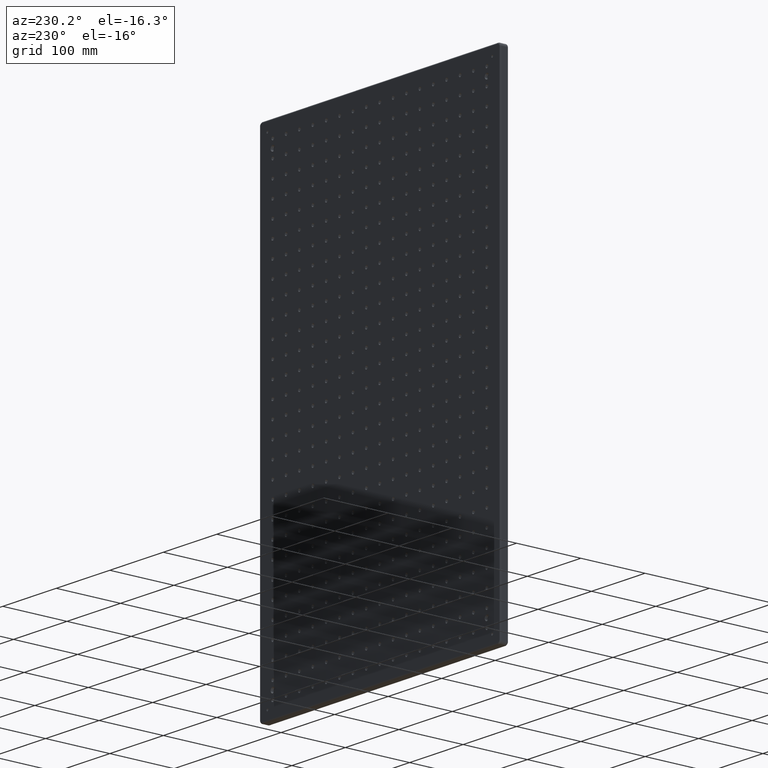
[diagram: clean part render]
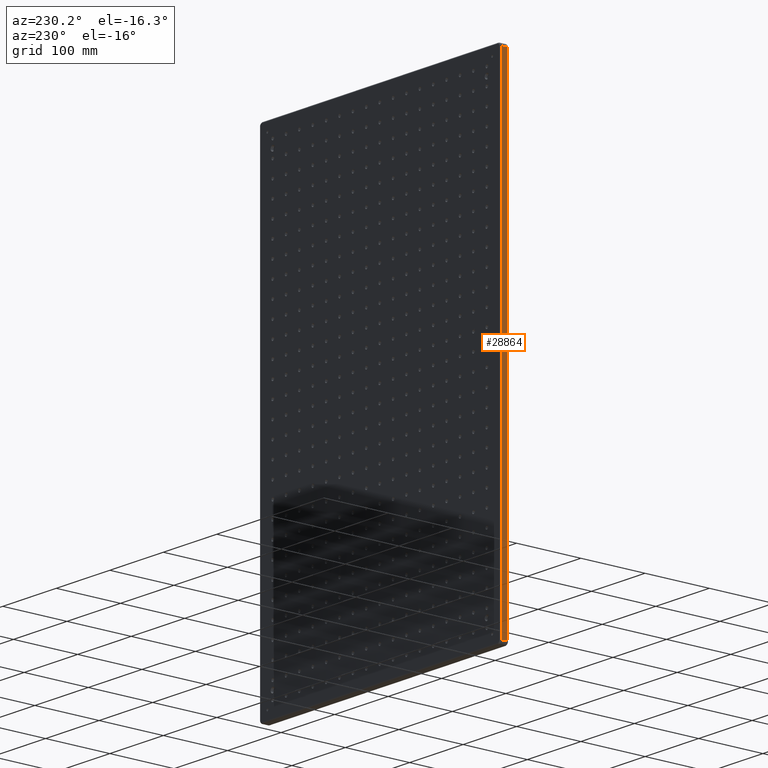
[diagram: same view with one face highlighted and labeled with its STEP entity id]
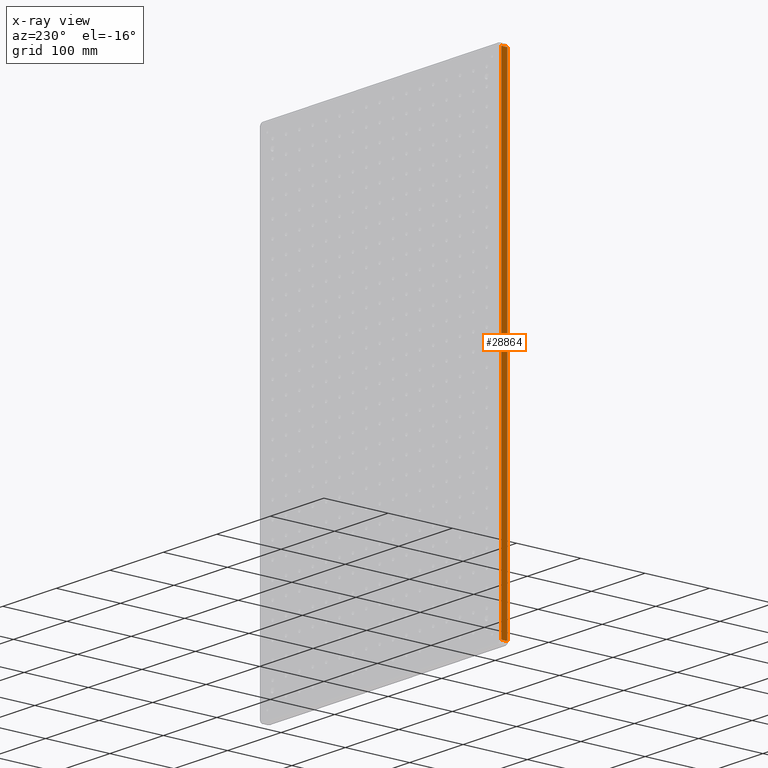
[diagram: x-ray of the same camera — body ghosted, the highlighted face saturated]
A machine part, auxiliary view. The second image highlights one B-rep face of the part: STEP entity #28864.
The next image is the same camera in x-ray: the body ghosted, the highlighted face saturated — about 0% of this face is hidden behind the body in this view.
In plain terms, the highlighted planar face has unit normal (1, 0, 0).
Its self-contained STEP definition (entity closure, byte-faithful):
#376 = VECTOR ( 'NONE', #14004, 1000.000000000000000 ) ;
#951 = VECTOR ( 'NONE', #1345, 1000.000000000000000 ) ;
#1018 = VECTOR ( 'NONE', #28519, 1000.000000000000000 ) ;
#1345 = DIRECTION ( 'NONE',  ( 0.000000000000000000, -0.000000000000000000, -1.000000000000000000 ) ) ;
#2539 = ORIENTED_EDGE ( 'NONE', *, *, #3381, .F. ) ;
#3063 = VERTEX_POINT ( 'NONE', #4716 ) ;
#3381 = EDGE_CURVE ( 'NONE', #3063, #36316, #13490, .T. ) ;
#4716 = CARTESIAN_POINT ( 'NONE',  ( -224.9999999999999147, 11.00000000000000000, 370.0000000000000000 ) ) ;
#5462 = ORIENTED_EDGE ( 'NONE', *, *, #26827, .T. ) ;
#6582 = CARTESIAN_POINT ( 'NONE',  ( -224.9999999999998579, 11.00000000000000000, -370.0000000000000000 ) ) ;
#7231 = CARTESIAN_POINT ( 'NONE',  ( -224.9999999999998579, 2.000000000000000000, -370.0000000000000000 ) ) ;
#9782 = ORIENTED_EDGE ( 'NONE', *, *, #13915, .T. ) ;
#10895 = VECTOR ( 'NONE', #29998, 1000.000000000000000 ) ;
#13289 = CARTESIAN_POINT ( 'NONE',  ( -224.9999999999998579, 13.00000000000000000, -370.0000000000000000 ) ) ;
#13490 = LINE ( 'NONE', #34308, #1018 ) ;
#13767 = CARTESIAN_POINT ( 'NONE',  ( -224.9999999999999147, 2.000000000000003553, 370.0000000000000000 ) ) ;
#13915 = EDGE_CURVE ( 'NONE', #15336, #23040, #31366, .T. ) ;
#14004 = DIRECTION ( 'NONE',  ( -0.000000000000000000, -1.000000000000000000, -0.000000000000000000 ) ) ;
#15336 = VERTEX_POINT ( 'NONE', #6582 ) ;
#19265 = PLANE ( 'NONE',  #31420 ) ;
#22022 = ORIENTED_EDGE ( 'NONE', *, *, #34096, .T. ) ;
#23040 = VERTEX_POINT ( 'NONE', #31699 ) ;
#23588 = EDGE_LOOP ( 'NONE', ( #9782, #5462, #2539, #22022 ) ) ;
#24673 = CARTESIAN_POINT ( 'NONE',  ( -224.9999999999998579, 11.00000000000000000, -370.0000000000000000 ) ) ;
#26827 = EDGE_CURVE ( 'NONE', #23040, #36316, #27854, .T. ) ;
#27561 = DIRECTION ( 'NONE',  ( 1.000000000000000000, 0.000000000000000000, 0.000000000000000000 ) ) ;
#27750 = DIRECTION ( 'NONE',  ( 0.000000000000000000, 0.000000000000000000, -1.000000000000000000 ) ) ;
#27854 = LINE ( 'NONE', #7231, #10895 ) ;
#28519 = DIRECTION ( 'NONE',  ( -0.000000000000000000, -1.000000000000000000, -0.000000000000000000 ) ) ;
#28864 = ADVANCED_FACE ( 'NONE', ( #30856 ), #19265, .F. ) ;
#29998 = DIRECTION ( 'NONE',  ( 0.000000000000000000, 0.000000000000000000, 1.000000000000000000 ) ) ;
#30856 = FACE_OUTER_BOUND ( 'NONE', #23588, .T. ) ;
#31366 = LINE ( 'NONE', #37322, #376 ) ;
#31420 = AXIS2_PLACEMENT_3D ( 'NONE', #13289, #27561, #27750 ) ;
#31699 = CARTESIAN_POINT ( 'NONE',  ( -224.9999999999998579, 2.000000000000001776, -370.0000000000000000 ) ) ;
#34096 = EDGE_CURVE ( 'NONE', #3063, #15336, #36240, .T. ) ;
#34308 = CARTESIAN_POINT ( 'NONE',  ( -224.9999999999999147, 13.00000000000000000, 370.0000000000000000 ) ) ;
#36240 = LINE ( 'NONE', #24673, #951 ) ;
#36316 = VERTEX_POINT ( 'NONE', #13767 ) ;
#37322 = CARTESIAN_POINT ( 'NONE',  ( -224.9999999999998579, 13.00000000000000000, -370.0000000000000000 ) ) ;